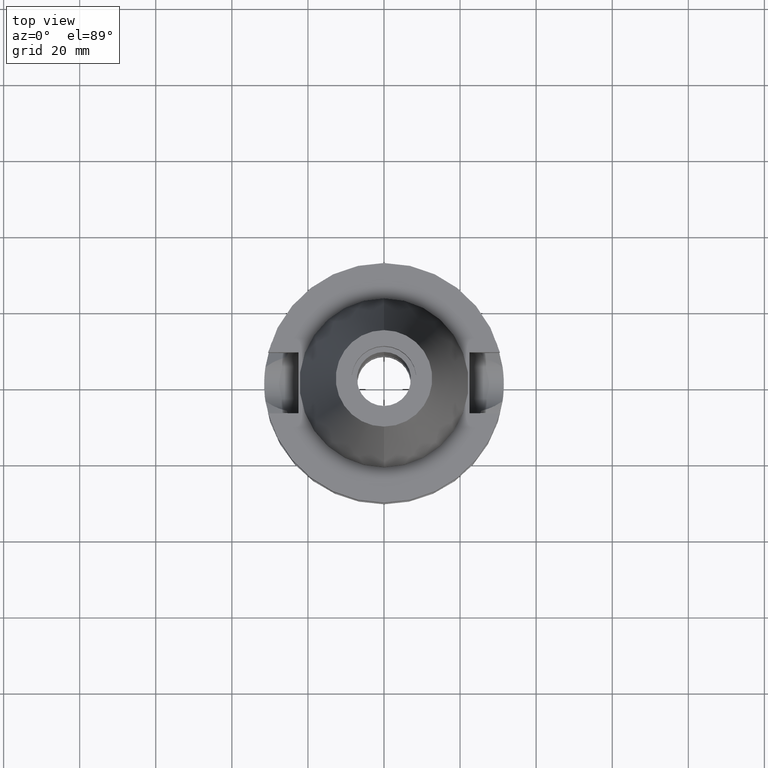
[diagram: clean part render]
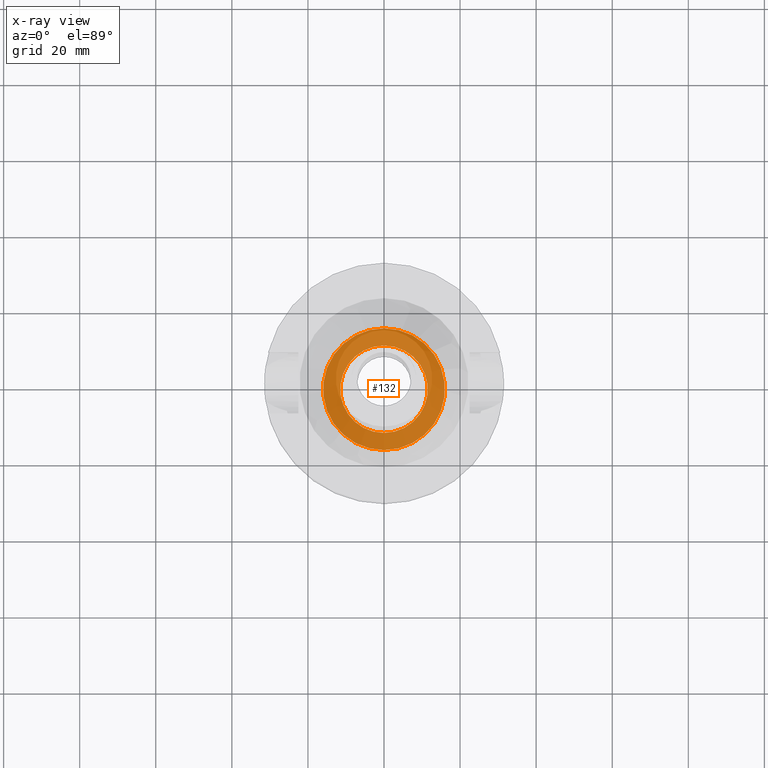
[diagram: x-ray — body ghosted, one internal face saturated and labeled with its STEP entity id]
A machine part, top view, then the same camera in x-ray: the body is ghosted and one INTERNAL B-rep face — a face not visible from any outside direction — is saturated and labeled: STEP entity #132.
In plain terms, the highlighted planar face has unit normal (0, 0, -1).
Its self-contained STEP definition (entity closure, byte-faithful):
#108 = AXIS2_PLACEMENT_3D ( 'NONE', #401, #1521, #2614 ) ;
#132 = ADVANCED_FACE ( 'NONE', ( #1067, #3081 ), #2211, .F. ) ;
#270 = EDGE_LOOP ( 'NONE', ( #3214, #2695 ) ) ;
#283 = AXIS2_PLACEMENT_3D ( 'NONE', #1612, #2975, #1351 ) ;
#367 = CARTESIAN_POINT ( 'NONE',  ( 0.0000000000000000000, 16.00000000000000000, -10.80000000000000071 ) ) ;
#399 = VERTEX_POINT ( 'NONE', #439 ) ;
#401 = CARTESIAN_POINT ( 'NONE',  ( 0.0000000000000000000, 0.0000000000000000000, -10.80000000000000071 ) ) ;
#439 = CARTESIAN_POINT ( 'NONE',  ( 0.0000000000000000000, 11.50000000000000000, -10.80000000000000071 ) ) ;
#763 = DIRECTION ( 'NONE',  ( 0.0000000000000000000, 1.000000000000000000, 0.0000000000000000000 ) ) ;
#876 = CIRCLE ( 'NONE', #1346, 16.00000000000000000 ) ;
#1067 = FACE_OUTER_BOUND ( 'NONE', #270, .T. ) ;
#1174 = EDGE_LOOP ( 'NONE', ( #2879, #2357 ) ) ;
#1180 = CIRCLE ( 'NONE', #108, 16.00000000000000000 ) ;
#1242 = AXIS2_PLACEMENT_3D ( 'NONE', #2153, #1595, #1943 ) ;
#1346 = AXIS2_PLACEMENT_3D ( 'NONE', #2150, #3567, #763 ) ;
#1351 = DIRECTION ( 'NONE',  ( 0.0000000000000000000, -1.000000000000000000, 0.0000000000000000000 ) ) ;
#1521 = DIRECTION ( 'NONE',  ( 0.0000000000000000000, 0.0000000000000000000, -1.000000000000000000 ) ) ;
#1595 = DIRECTION ( 'NONE',  ( 0.0000000000000000000, 0.0000000000000000000, 1.000000000000000000 ) ) ;
#1612 = CARTESIAN_POINT ( 'NONE',  ( 0.0000000000000000000, 0.0000000000000000000, -10.80000000000000071 ) ) ;
#1678 = VERTEX_POINT ( 'NONE', #2353 ) ;
#1685 = VERTEX_POINT ( 'NONE', #3489 ) ;
#1696 = DIRECTION ( 'NONE',  ( 0.0000000000000000000, -1.000000000000000000, 0.0000000000000000000 ) ) ;
#1832 = EDGE_CURVE ( 'NONE', #399, #1685, #2736, .T. ) ;
#1943 = DIRECTION ( 'NONE',  ( 0.0000000000000000000, 1.000000000000000000, 0.0000000000000000000 ) ) ;
#1981 = VERTEX_POINT ( 'NONE', #367 ) ;
#2150 = CARTESIAN_POINT ( 'NONE',  ( 0.0000000000000000000, 0.0000000000000000000, -10.80000000000000071 ) ) ;
#2153 = CARTESIAN_POINT ( 'NONE',  ( 0.0000000000000000000, 0.0000000000000000000, -10.80000000000000071 ) ) ;
#2179 = CARTESIAN_POINT ( 'NONE',  ( 0.0000000000000000000, 0.0000000000000000000, -10.80000000000000071 ) ) ;
#2211 = PLANE ( 'NONE',  #2617 ) ;
#2223 = EDGE_CURVE ( 'NONE', #1678, #1981, #1180, .T. ) ;
#2353 = CARTESIAN_POINT ( 'NONE',  ( 0.0000000000000000000, -16.00000000000000000, -10.80000000000000071 ) ) ;
#2357 = ORIENTED_EDGE ( 'NONE', *, *, #2457, .F. ) ;
#2368 = EDGE_CURVE ( 'NONE', #1981, #1678, #876, .T. ) ;
#2457 = EDGE_CURVE ( 'NONE', #1685, #399, #2615, .T. ) ;
#2614 = DIRECTION ( 'NONE',  ( 0.0000000000000000000, -1.000000000000000000, 0.0000000000000000000 ) ) ;
#2615 = CIRCLE ( 'NONE', #283, 11.50000000000000000 ) ;
#2617 = AXIS2_PLACEMENT_3D ( 'NONE', #2179, #2778, #1696 ) ;
#2695 = ORIENTED_EDGE ( 'NONE', *, *, #2223, .F. ) ;
#2736 = CIRCLE ( 'NONE', #1242, 11.50000000000000000 ) ;
#2778 = DIRECTION ( 'NONE',  ( 0.0000000000000000000, 0.0000000000000000000, -1.000000000000000000 ) ) ;
#2879 = ORIENTED_EDGE ( 'NONE', *, *, #1832, .F. ) ;
#2975 = DIRECTION ( 'NONE',  ( 0.0000000000000000000, 0.0000000000000000000, 1.000000000000000000 ) ) ;
#3081 = FACE_BOUND ( 'NONE', #1174, .T. ) ;
#3214 = ORIENTED_EDGE ( 'NONE', *, *, #2368, .F. ) ;
#3489 = CARTESIAN_POINT ( 'NONE',  ( 0.0000000000000000000, -11.50000000000000000, -10.80000000000000071 ) ) ;
#3567 = DIRECTION ( 'NONE',  ( 0.0000000000000000000, 0.0000000000000000000, -1.000000000000000000 ) ) ;